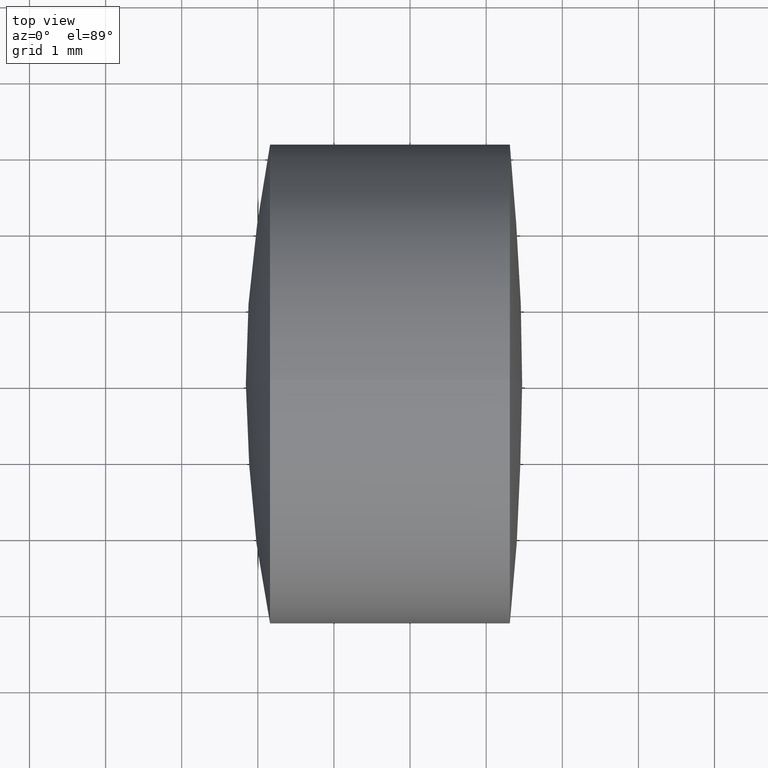
[diagram: clean part render]
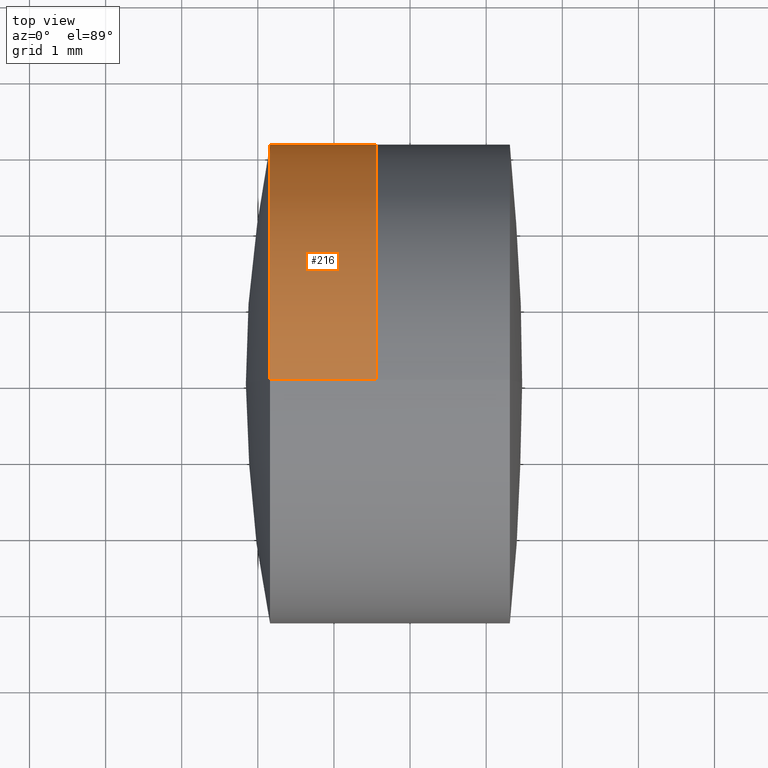
[diagram: same view with one face highlighted and labeled with its STEP entity id]
A machine part, top view. The second image highlights one B-rep face of the part: STEP entity #216.
In plain terms, the highlighted cylindrical surface (partial cylindrical patch) has radius 3.15 mm, axis along (-1, -0, -0).
Its self-contained STEP definition (entity closure, byte-faithful):
#8 = DIRECTION ( 'NONE',  ( -1.000000000000000000, -0.0000000000000000000, -0.0000000000000000000 ) ) ;
#13 = ORIENTED_EDGE ( 'NONE', *, *, #76, .F. ) ;
#15 = ORIENTED_EDGE ( 'NONE', *, *, #132, .T. ) ;
#20 = AXIS2_PLACEMENT_3D ( 'NONE', #146, #112, #142 ) ;
#23 = CARTESIAN_POINT ( 'NONE',  ( 8.563134654860508700, 0.0000000000000000000, 0.0000000000000000000 ) ) ;
#25 = DIRECTION ( 'NONE',  ( 0.0000000000000000000, 0.0000000000000000000, 1.000000000000000000 ) ) ;
#31 = CYLINDRICAL_SURFACE ( 'NONE', #20, 3.149999999999999900 ) ;
#33 = AXIS2_PLACEMENT_3D ( 'NONE', #23, #217, #25 ) ;
#50 = EDGE_CURVE ( 'NONE', #195, #267, #55, .T. ) ;
#55 = CIRCLE ( 'NONE', #68, 3.149999999999999900 ) ;
#65 = CIRCLE ( 'NONE', #33, 3.149999999999999900 ) ;
#68 = AXIS2_PLACEMENT_3D ( 'NONE', #327, #196, #230 ) ;
#76 = EDGE_CURVE ( 'NONE', #171, #195, #83, .T. ) ;
#83 = LINE ( 'NONE', #263, #179 ) ;
#100 = EDGE_LOOP ( 'NONE', ( #346, #15, #289, #13 ) ) ;
#109 = CARTESIAN_POINT ( 'NONE',  ( 7.160622845459306200, -3.857637417314162200E-016, 3.149999999999999500 ) ) ;
#112 = DIRECTION ( 'NONE',  ( -1.000000000000000000, -0.0000000000000000000, -0.0000000000000000000 ) ) ;
#123 = VECTOR ( 'NONE', #129, 1000.000000000000000 ) ;
#125 = LINE ( 'NONE', #258, #123 ) ;
#129 = DIRECTION ( 'NONE',  ( -1.000000000000000000, -0.0000000000000000000, -0.0000000000000000000 ) ) ;
#132 = EDGE_CURVE ( 'NONE', #200, #267, #125, .T. ) ;
#142 = DIRECTION ( 'NONE',  ( 0.0000000000000000000, 0.0000000000000000000, 1.000000000000000000 ) ) ;
#146 = CARTESIAN_POINT ( 'NONE',  ( -0.8160621761658039000, 0.0000000000000000000, 0.0000000000000000000 ) ) ;
#171 = VERTEX_POINT ( 'NONE', #199 ) ;
#179 = VECTOR ( 'NONE', #8, 1000.000000000000000 ) ;
#195 = VERTEX_POINT ( 'NONE', #109 ) ;
#196 = DIRECTION ( 'NONE',  ( -1.000000000000000000, -0.0000000000000000000, -0.0000000000000000000 ) ) ;
#199 = CARTESIAN_POINT ( 'NONE',  ( 8.563134654860508700, 0.0000000000000000000, 3.149999999999999900 ) ) ;
#200 = VERTEX_POINT ( 'NONE', #257 ) ;
#216 = ADVANCED_FACE ( 'NONE', ( #231 ), #31, .T. ) ;
#217 = DIRECTION ( 'NONE',  ( -1.000000000000000000, -0.0000000000000000000, -0.0000000000000000000 ) ) ;
#218 = EDGE_CURVE ( 'NONE', #171, #200, #65, .T. ) ;
#230 = DIRECTION ( 'NONE',  ( 0.0000000000000000000, 0.0000000000000000000, 1.000000000000000000 ) ) ;
#231 = FACE_OUTER_BOUND ( 'NONE', #100, .T. ) ;
#257 = CARTESIAN_POINT ( 'NONE',  ( 8.563134654860508700, 3.857637417314162700E-016, -3.149999999999999900 ) ) ;
#258 = CARTESIAN_POINT ( 'NONE',  ( -0.8160621761658039000, 3.857637417314162700E-016, -3.149999999999999900 ) ) ;
#263 = CARTESIAN_POINT ( 'NONE',  ( -0.8160621761658039000, 0.0000000000000000000, 3.149999999999999900 ) ) ;
#267 = VERTEX_POINT ( 'NONE', #317 ) ;
#289 = ORIENTED_EDGE ( 'NONE', *, *, #50, .F. ) ;
#317 = CARTESIAN_POINT ( 'NONE',  ( 7.160622845459306200, 0.0000000000000000000, -3.149999999999999500 ) ) ;
#327 = CARTESIAN_POINT ( 'NONE',  ( 7.160622845459305300, 0.0000000000000000000, 0.0000000000000000000 ) ) ;
#346 = ORIENTED_EDGE ( 'NONE', *, *, #218, .T. ) ;